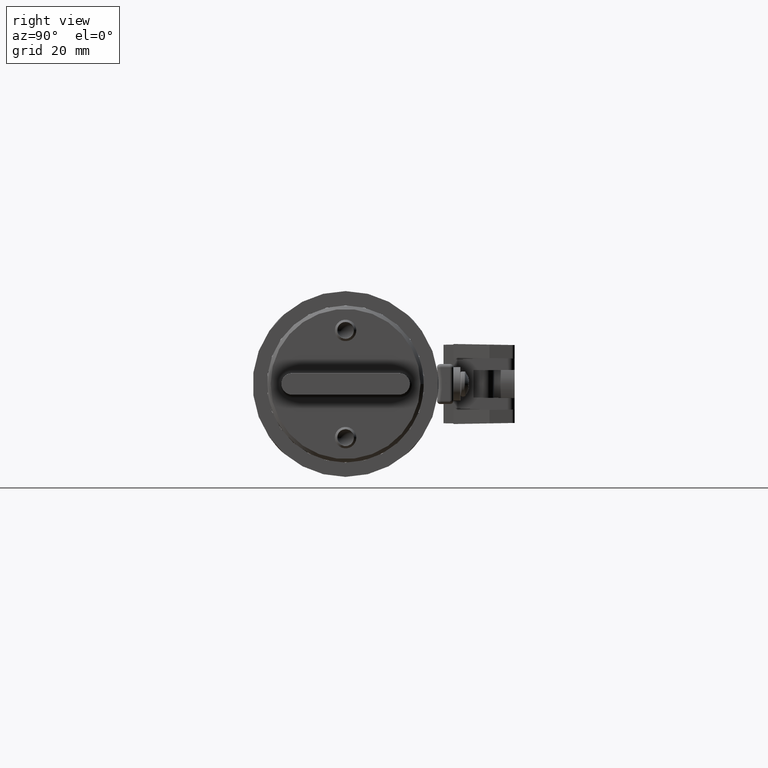
[diagram: clean part render]
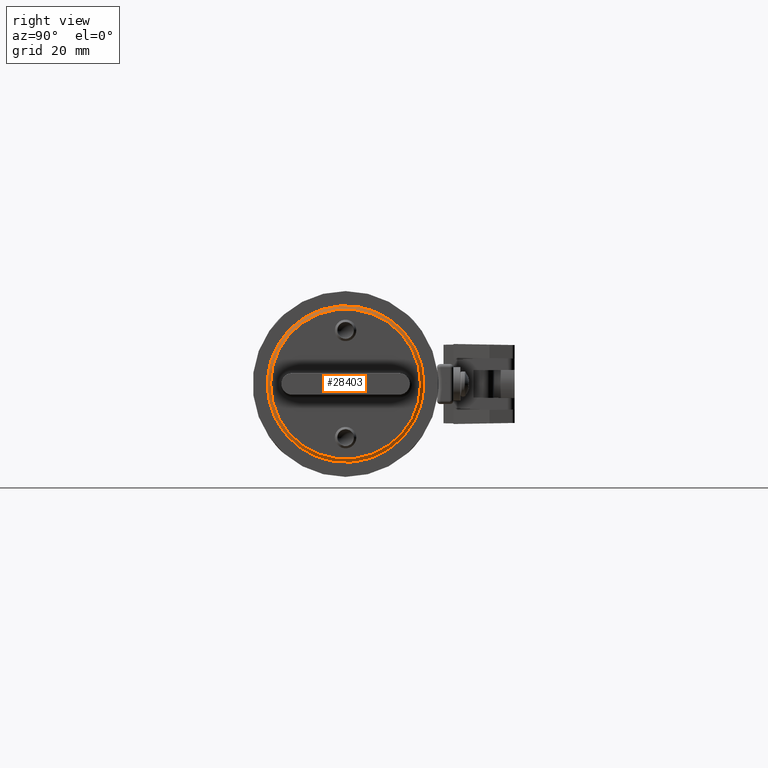
[diagram: same view with one face highlighted and labeled with its STEP entity id]
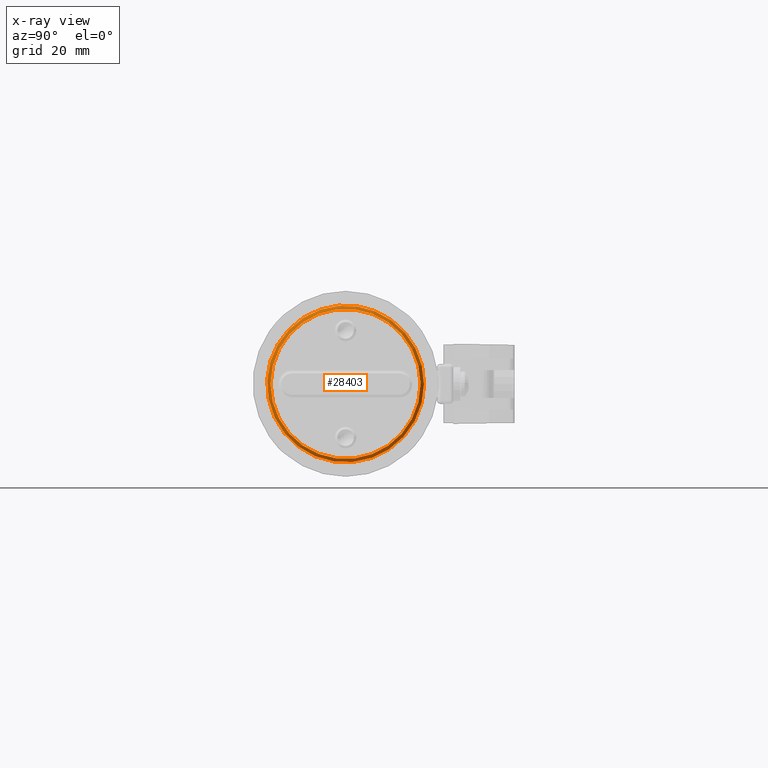
[diagram: x-ray of the same camera — body ghosted, the highlighted face saturated]
A machine part, right view. The second image highlights one B-rep face of the part: STEP entity #28403.
The next image is the same camera in x-ray: the body ghosted, the highlighted face saturated — about 0% of this face is hidden behind the body in this view.
In plain terms, the highlighted conical surface has half-angle 45 deg.
Its self-contained STEP definition (entity closure, byte-faithful):
#2725 = DIRECTION ( 'NONE',  ( 0.0000000000000000000, 1.000000000000000000, -2.644533087458223300E-043 ) ) ;
#10621 = CIRCLE ( 'NONE', #61559, 0.6860000000000000500 ) ;
#15272 = AXIS2_PLACEMENT_3D ( 'NONE', #81255, #42134, #2725 ) ;
#19297 = EDGE_CURVE ( 'NONE', #24170, #24170, #10621, .T. ) ;
#20050 = CONICAL_SURFACE ( 'NONE', #67268, 0.6560000000000011400, 0.7853981633974391800 ) ;
#24170 = VERTEX_POINT ( 'NONE', #81059 ) ;
#24341 = EDGE_CURVE ( 'NONE', #37539, #37539, #48891, .T. ) ;
#28403 = ADVANCED_FACE ( 'NONE', ( #30411, #80542 ), #20050, .T. ) ;
#30411 = FACE_OUTER_BOUND ( 'NONE', #60072, .T. ) ;
#37539 = VERTEX_POINT ( 'NONE', #79827 ) ;
#37876 = DIRECTION ( 'NONE',  ( 0.0000000000000000000, -1.000000000000000000, 2.644533087458223300E-043 ) ) ;
#38310 = DIRECTION ( 'NONE',  ( -1.000000000000000000, -0.0000000000000000000, 1.183291357831517700E-030 ) ) ;
#42134 = DIRECTION ( 'NONE',  ( 1.000000000000000000, 0.0000000000000000000, -1.183291357831517700E-030 ) ) ;
#47746 = ORIENTED_EDGE ( 'NONE', *, *, #24341, .F. ) ;
#48891 = CIRCLE ( 'NONE', #15272, 0.6560000000000011400 ) ;
#60072 = EDGE_LOOP ( 'NONE', ( #69510 ) ) ;
#61559 = AXIS2_PLACEMENT_3D ( 'NONE', #77473, #38310, #84094 ) ;
#67268 = AXIS2_PLACEMENT_3D ( 'NONE', #83360, #77029, #37876 ) ;
#69510 = ORIENTED_EDGE ( 'NONE', *, *, #19297, .F. ) ;
#77029 = DIRECTION ( 'NONE',  ( -1.000000000000000000, 0.0000000000000000000, 1.183291357831517700E-030 ) ) ;
#77473 = CARTESIAN_POINT ( 'NONE',  ( 2.719999999999998900, 8.539679527031985500E-030, 1.438937539532366500E-030 ) ) ;
#79827 = CARTESIAN_POINT ( 'NONE',  ( 2.749999999999998200, 0.6560000000000011400, 1.403438798797248300E-030 ) ) ;
#80542 = FACE_BOUND ( 'NONE', #82556, .T. ) ;
#81059 = CARTESIAN_POINT ( 'NONE',  ( 2.719999999999998900, 0.6860000000000000500, 1.438937539532185000E-030 ) ) ;
#81255 = CARTESIAN_POINT ( 'NONE',  ( 2.749999999999998200, 8.539679527031985500E-030, 1.403438798797421700E-030 ) ) ;
#82556 = EDGE_LOOP ( 'NONE', ( #47746 ) ) ;
#83360 = CARTESIAN_POINT ( 'NONE',  ( 2.749999999999998200, 8.539679527031985500E-030, 1.403438798797421700E-030 ) ) ;
#84094 = DIRECTION ( 'NONE',  ( 0.0000000000000000000, 1.000000000000000000, -2.645117324165161300E-043 ) ) ;